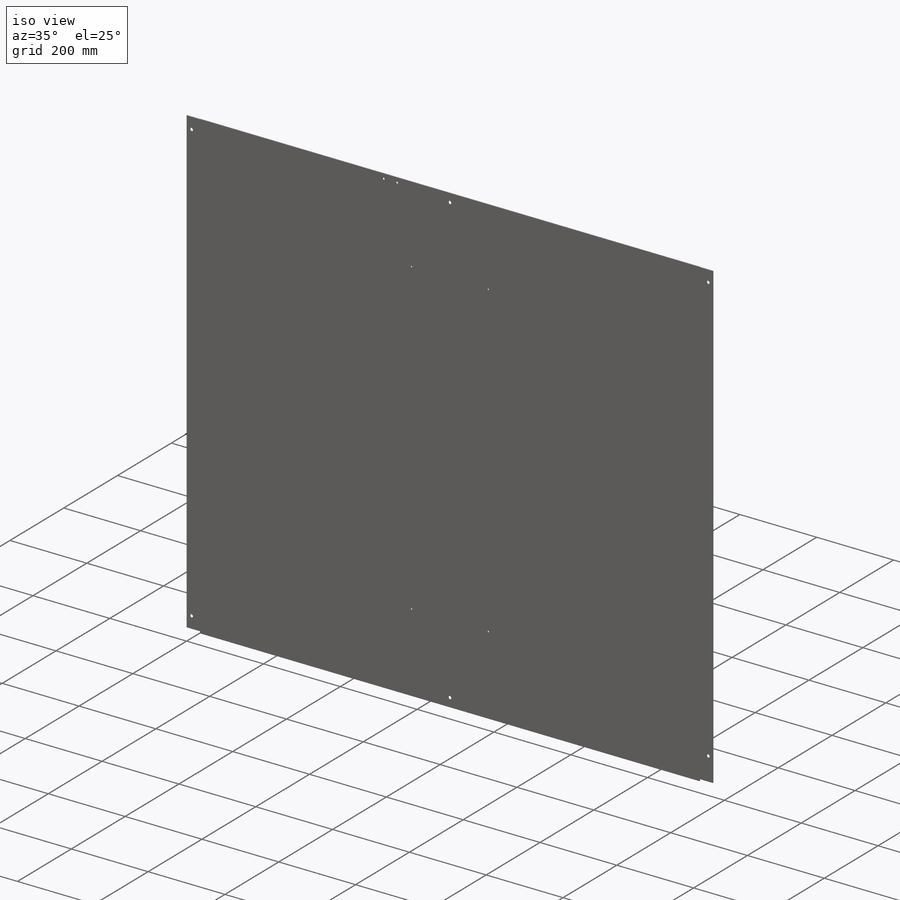
[diagram: iso view]
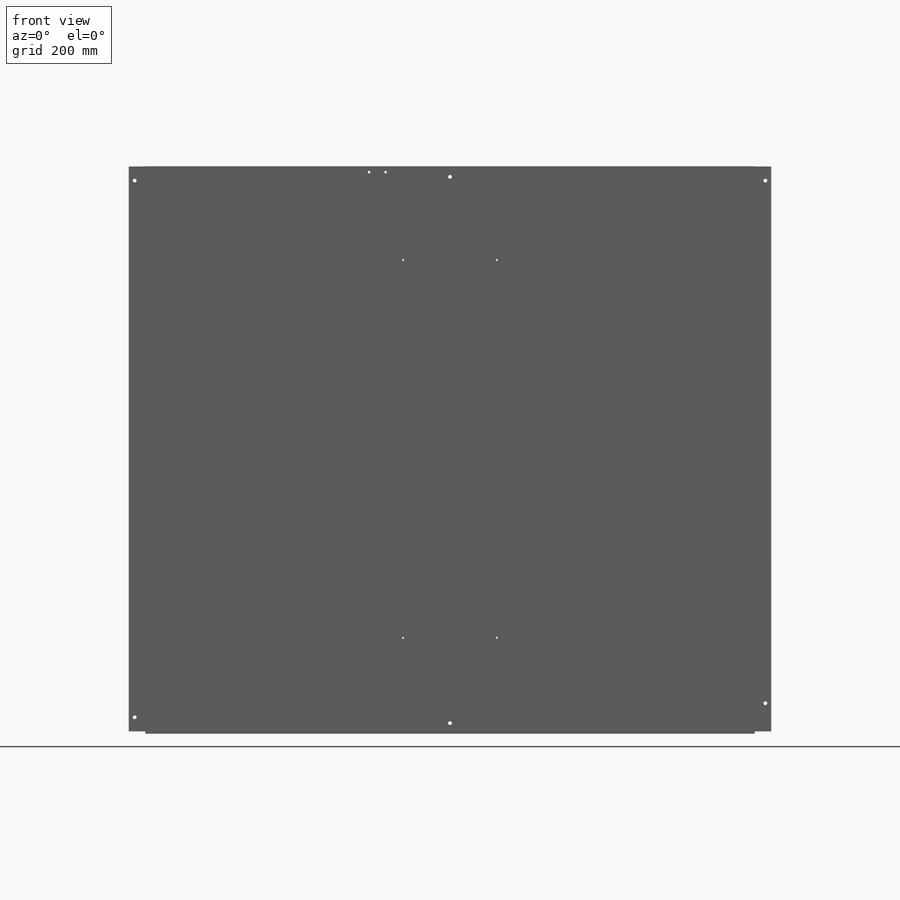
[diagram: front view]
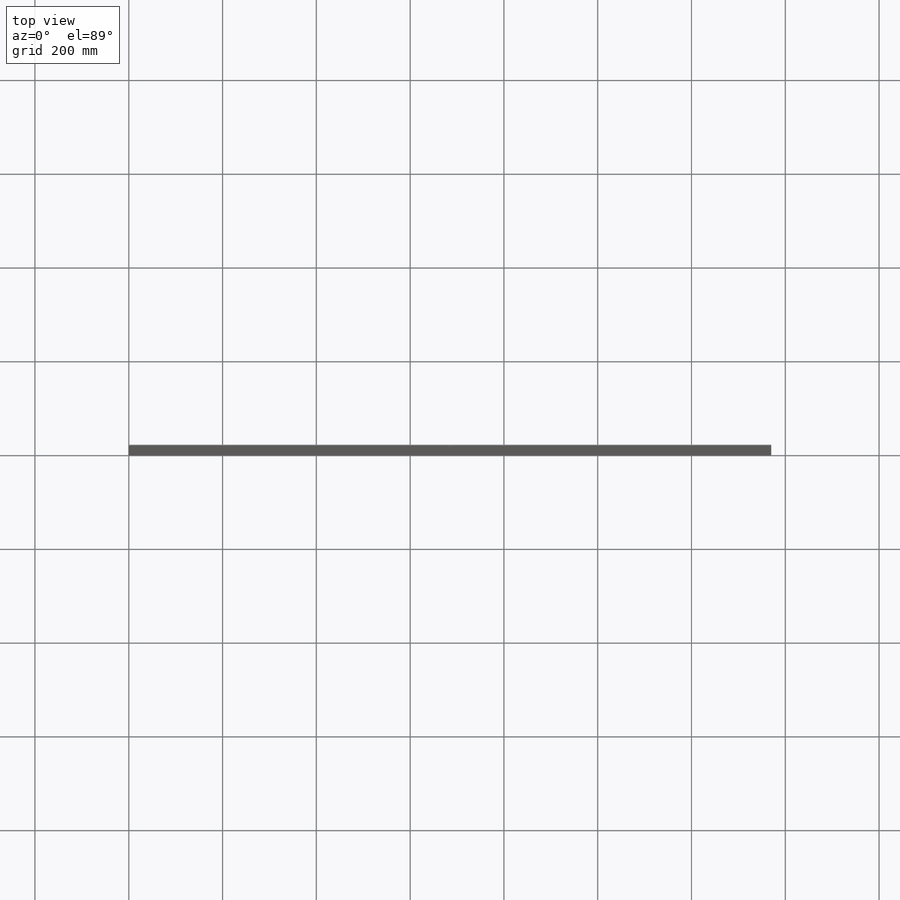
[diagram: top view]
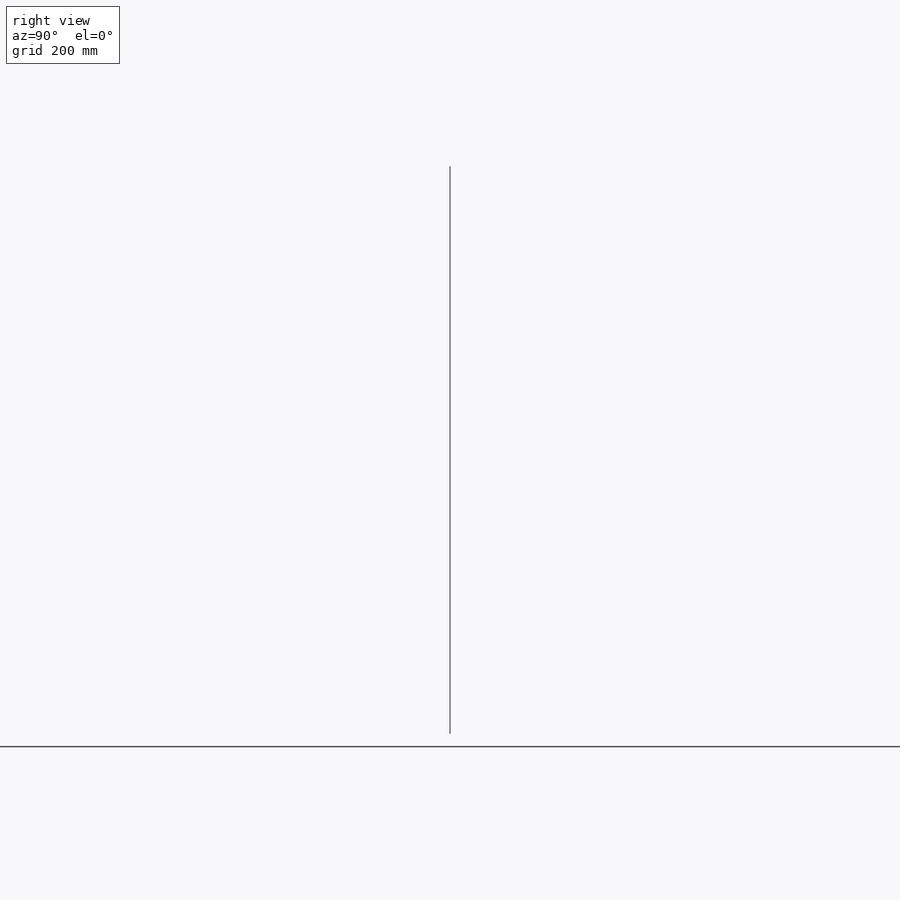
[diagram: right view]
SOLIDWORKS PART (.sldprt)
format: sldprt  version: not decoded by parser v0  size: 225,792 bytes
history: native  units: mm
features: sketch x5, cut_extrude x3, sheet_metal_op x2, material x1 + 1 further entry (+16 scaffold rows collapsed; 1 parser-record rows omitted)
feature tree (29):
  scaffold x16  (default folders/planes/origin — collapsed)
  material  "Material <not specified>"
  sketch  "Sketch1"  dims[c1.D1=0.5mm c1.D2=1190.0mm c1.D3=1290.0mm c1.D4=35.0mm c2.D2=1210.0mm c2.D3=1370.0mm c2.D5=35.0mm c2.D6=5.0mm c2.D7=5.0mm c2.D8=35.0mm]
  sheet_metal_op  "Sheet-Metal1"  Thickness=2mm
  sheet_metal_op  "Base-Flange1"
  sketch  "Sketch4"  dims[c1.D1=8.0mm c1.D4=8.0mm c1.D7=8.0mm c1.D9=8.0mm c1.D13=8.0mm c1.D14=8.0mm c2.D13=8.0mm c2.D2=30.0mm c2.D3=22.5mm c2.D5=22.5mm c2.D6=30.0mm c2.D8=22.5mm c2.D10=30.0mm c2.D11=22.5mm c2.D12=22.5mm c2.D15=22.5mm c3.D12=22.5mm]
  cut_extrude  "Cut-Extrude1"  [1 undecoded]
  sketch  "Sketch5"  dims[c1.D1=5.3mm c1.D3=8.0mm c1.D2=12.5mm c2.D3=172.75mm c2.D4=12.5mm c2.D5=35.0mm]
  cut_extrude  "Cut-Extrude2"  [1 undecoded]
  sketch  "Sketch6"  dims[D1=4.0mm D2=100.0mm D3=100.0mm D4=200.0mm]
  cut_extrude  "Cut-Extrude3"  [1 undecoded]
  "Flat-Pattern1"
  sketch  "Bend-Lines1"
  parser-record x1  (decoder bookkeeping rows leaked as tree rows — omitted from the tree; the rows remain in map.json)
decode coverage: 5 of 10 modeling features carry decoded parameters; 1 rows unclassified (native names shown)
note: 3 parameter values undecoded
summary: no parameter record found for 3 features
note: suppression state not decoded; provenance and decode notes live in map.json
